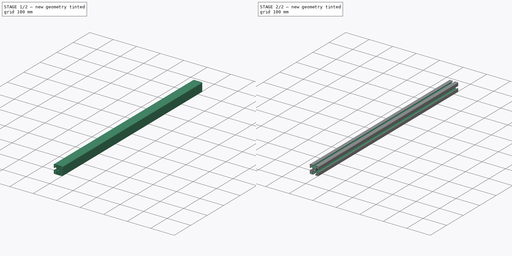
[diagram: build sequence overview — one tinted view per stage of 2, left to right]
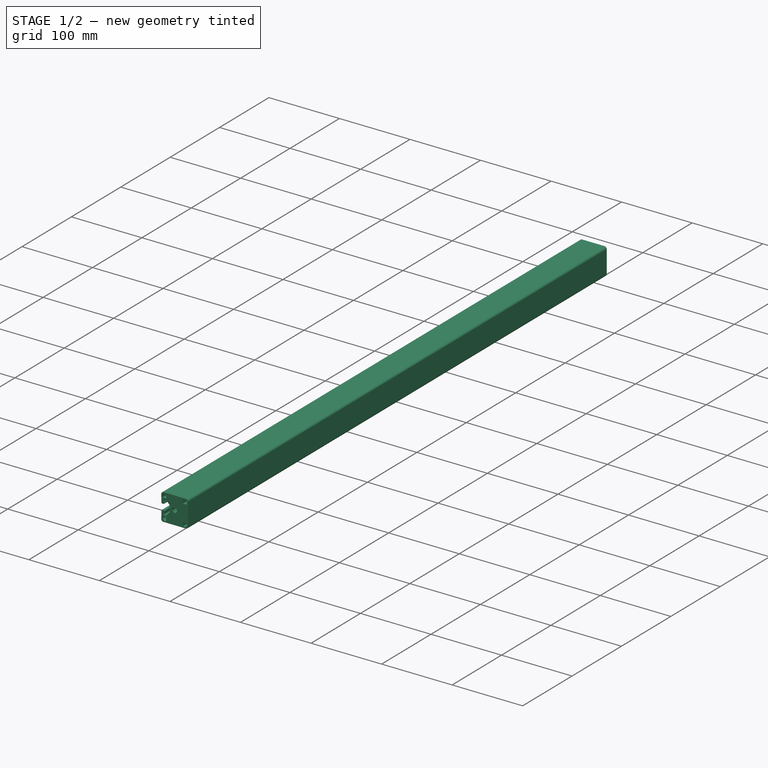
[diagram: stage 1 of 2 — iso view after this stage's code; geometry added in this stage tinted green]
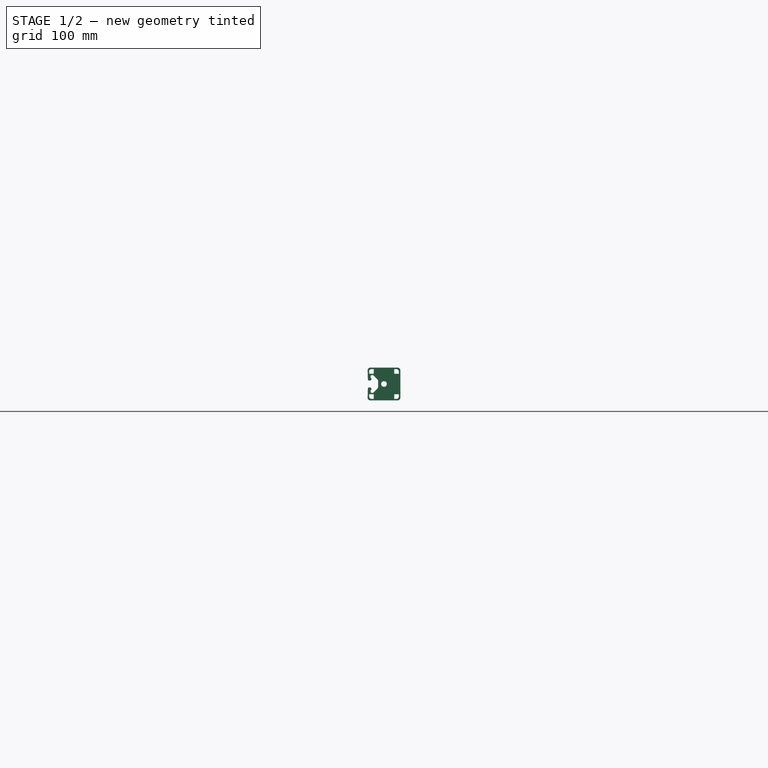
[diagram: stage 1 of 2 — front view after this stage's code; geometry added in this stage tinted green]
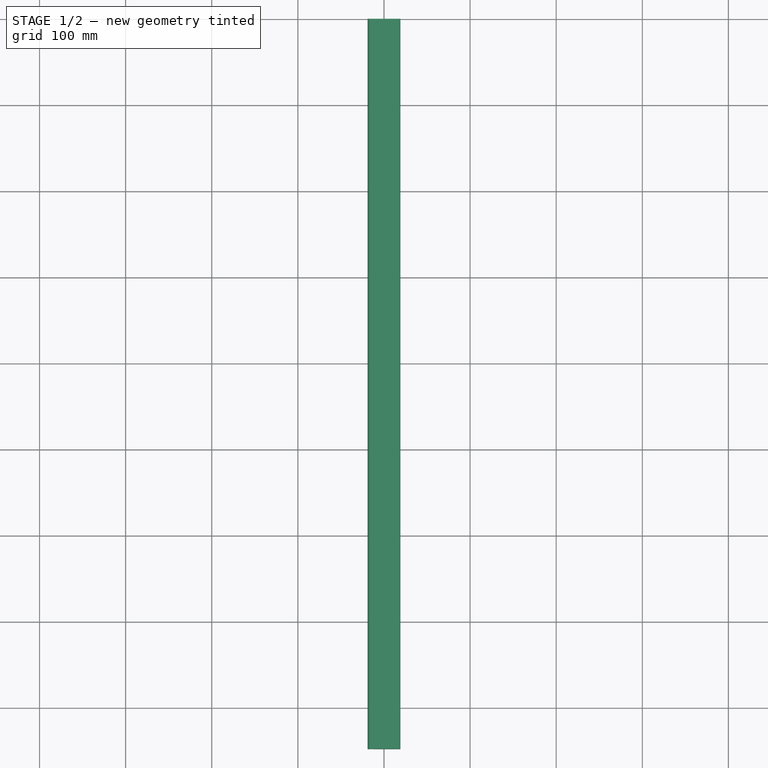
[diagram: stage 1 of 2 — top view after this stage's code; geometry added in this stage tinted green]
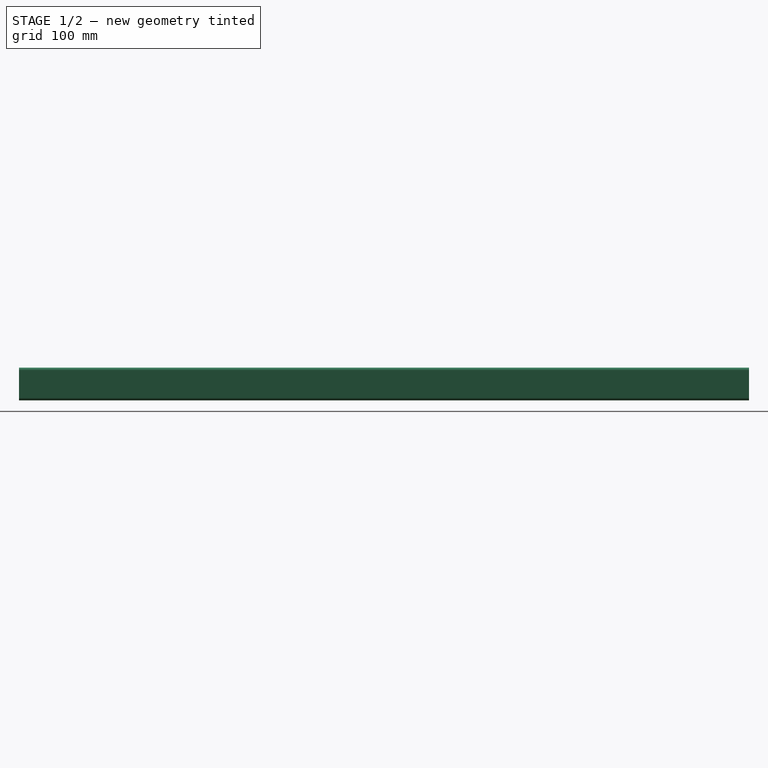
[diagram: stage 1 of 2 — right view after this stage's code; geometry added in this stage tinted green]
FCSTD DOCUMENT  (FreeCAD 0.21R33668 +7 (Git))
Label: 1515-33.375
License: All rights reserved
LicenseURL: http://en.wikipedia.org/wiki/All_rights_reserved
objects: Sketcher::SketchObject×2, PartDesign::CoordinateSystem×1, PartDesign::Pad×1, PartDesign::Pocket×1, PartDesign::PolarPattern×1, PartDesign::Body×1, App::Part×1
note: 9 computed .brp shape members not serialized (recipe doc carries the construction recipe); baked Part::Feature solids carry a one-line shape summary decoded from their .brp

FEATURE [PartDesign::CoordinateSystem] LCS_001
  AttacherType = Attacher::AttachEngine3D
  MapMode = 2
  Support = -> [X_Axis001]
FEATURE [Sketcher::SketchObject] Sketch
  FullyConstrained = true
  MapMode = 5
  Placement = pos=(0,0,0) rot=(1,0,0;1.5708rad)
  Support = -> [XZ_Plane001]
  sketch-geometry (43):
    g0: ArcOfCircle CenterX=-15.87 CenterY=15.87 CenterZ=0 NormalX=0 NormalY=0 NormalZ=1 AngleXU=0 Radius=3.18 StartAngle=1.5708 EndAngle=3.14159
    g1: LineSegment StartX=-15.87 StartY=19.05 StartZ=0 EndX=15.87 EndY=19.05 EndZ=0
    g2: ArcOfCircle CenterX=15.87 CenterY=15.87 CenterZ=0 NormalX=0 NormalY=0 NormalZ=1 AngleXU=0 Radius=3.18 StartAngle=1e-16 EndAngle=1.5708
    g3: LineSegment StartX=19.05 StartY=15.87 StartZ=0 EndX=19.05 EndY=-15.87 EndZ=0
    g4: ArcOfCircle CenterX=15.87 CenterY=-15.87 CenterZ=0 NormalX=0 NormalY=0 NormalZ=1 AngleXU=0 Radius=3.18 StartAngle=4.71239 EndAngle=6.28319
    g5: LineSegment StartX=15.87 StartY=-19.05 StartZ=0 EndX=-15.87 EndY=-19.05 EndZ=0
    g6: ArcOfCircle CenterX=-15.87 CenterY=-15.87 CenterZ=0 NormalX=0 NormalY=0 NormalZ=1 AngleXU=0 Radius=3.18 StartAngle=3.14159 EndAngle=4.71239
    g7: LineSegment StartX=-19.05 StartY=-15.87 StartZ=0 EndX=-19.05 EndY=15.87 EndZ=0
    g8: GeomPoint X=-19.05 Y=19.05 Z=0
    g9: GeomPoint X=19.05 Y=-19.05 Z=0
    g10: LineSegment StartX=-12.145 StartY=-11.895 StartZ=0 EndX=-17.025 EndY=-11.895 EndZ=0
    g11: LineSegment StartX=-17.275 StartY=-12.145 StartZ=0 EndX=-17.275 EndY=-14.485 EndZ=0
    g12: LineSegment StartX=-14.485 StartY=-17.275 StartZ=0 EndX=-12.145 EndY=-17.275 EndZ=0
    g13: LineSegment StartX=-11.895 StartY=-17.025 StartZ=0 EndX=-11.895 EndY=-12.145 EndZ=0
    g14: ArcOfCircle CenterX=-14.485 CenterY=-14.485 CenterZ=0 NormalX=0 NormalY=0 NormalZ=1 AngleXU=0 Radius=2.79 StartAngle=3.14159 EndAngle=4.71239
    g15: LineSegment StartX=-12.145 StartY=11.895 StartZ=0 EndX=-17.025 EndY=11.895 EndZ=0
    g16: LineSegment StartX=-17.275 StartY=12.145 StartZ=0 EndX=-17.275 EndY=14.485 EndZ=0
    g17: ArcOfCircle CenterX=-14.485 CenterY=14.485 CenterZ=0 NormalX=0 NormalY=0 NormalZ=1 AngleXU=0 Radius=2.79 StartAngle=1.5708 EndAngle=3.14159
    g18: LineSegment StartX=-14.485 StartY=17.275 StartZ=0 EndX=-12.145 EndY=17.275 EndZ=0
    g19: LineSegment StartX=-11.895 StartY=17.025 StartZ=0 EndX=-11.895 EndY=12.145 EndZ=0
    g20: LineSegment StartX=12.145 StartY=11.895 StartZ=0 EndX=17.025 EndY=11.895 EndZ=0
    g21: LineSegment StartX=17.275 StartY=12.145 StartZ=0 EndX=17.275 EndY=14.485 EndZ=0
    g22: ArcOfCircle CenterX=14.485 CenterY=14.485 CenterZ=0 NormalX=0 NormalY=0 NormalZ=1 AngleXU=0 Radius=2.79 StartAngle=1e-16 EndAngle=1.5708
    g23: LineSegment StartX=14.485 StartY=17.275 StartZ=0 EndX=12.145 EndY=17.275 EndZ=0
    g24: LineSegment StartX=11.895 StartY=17.025 StartZ=0 EndX=11.895 EndY=12.145 EndZ=0
    g25: LineSegment StartX=12.145 StartY=-11.895 StartZ=0 EndX=17.025 EndY=-11.895 EndZ=0
    g26: LineSegment StartX=17.275 StartY=-12.145 StartZ=0 EndX=17.275 EndY=-14.485 EndZ=0
    g27: LineSegment StartX=14.485 StartY=-17.275 StartZ=0 EndX=12.145 EndY=-17.275 EndZ=0
    g28: LineSegment StartX=11.895 StartY=-17.025 StartZ=0 EndX=11.895 EndY=-12.145 EndZ=0
    g29: ArcOfCircle CenterX=14.485 CenterY=-14.485 CenterZ=0 NormalX=0 NormalY=0 NormalZ=1 AngleXU=0 Radius=2.79 StartAngle=4.71239 EndAngle=6.28319
    g30: Circle CenterX=0 CenterY=0 CenterZ=0 NormalX=0 NormalY=0 NormalZ=1 AngleXU=0 Radius=3.265
    g31: ArcOfCircle CenterX=-17.025 CenterY=-12.145 CenterZ=0 NormalX=0 NormalY=0 NormalZ=1 AngleXU=0 Radius=0.25 StartAngle=1.5708 EndAngle=3.14159
    g32: ArcOfCircle CenterX=-12.145 CenterY=-12.145 CenterZ=0 NormalX=0 NormalY=0 NormalZ=1 AngleXU=0 Radius=0.25 StartAngle=3.4e-15 EndAngle=1.5708
    g33: ArcOfCircle CenterX=-12.145 CenterY=-17.025 CenterZ=0 NormalX=0 NormalY=0 NormalZ=1 AngleXU=0 Radius=0.25 StartAngle=4.71239 EndAngle=6.28319
    g34: ArcOfCircle CenterX=-12.145 CenterY=17.025 CenterZ=0 NormalX=0 NormalY=0 NormalZ=1 AngleXU=0 Radius=0.25 StartAngle=1.4e-15 EndAngle=1.5708
    g35: ArcOfCircle CenterX=-12.145 CenterY=12.145 CenterZ=0 NormalX=0 NormalY=0 NormalZ=1 AngleXU=0 Radius=0.25 StartAngle=4.71239 EndAngle=6.28319
    g36: ArcOfCircle CenterX=-17.025 CenterY=12.145 CenterZ=0 NormalX=0 NormalY=0 NormalZ=1 AngleXU=0 Radius=0.25 StartAngle=3.14159 EndAngle=4.71239
    g37: ArcOfCircle CenterX=12.145 CenterY=17.025 CenterZ=0 NormalX=0 NormalY=0 NormalZ=1 AngleXU=0 Radius=0.25 StartAngle=1.5708 EndAngle=3.14159
    g38: ArcOfCircle CenterX=12.145 CenterY=12.145 CenterZ=0 NormalX=0 NormalY=0 NormalZ=1 AngleXU=0 Radius=0.25 StartAngle=3.14159 EndAngle=4.71239
    g39: ArcOfCircle CenterX=17.025 CenterY=12.145 CenterZ=0 NormalX=0 NormalY=0 NormalZ=1 AngleXU=0 Radius=0.25 StartAngle=4.71239 EndAngle=6.28319
    g40: ArcOfCircle CenterX=17.025 CenterY=-12.145 CenterZ=0 NormalX=0 NormalY=0 NormalZ=1 AngleXU=0 Radius=0.25 StartAngle=2.8e-15 EndAngle=1.5708
    g41: ArcOfCircle CenterX=12.145 CenterY=-12.145 CenterZ=0 NormalX=0 NormalY=0 NormalZ=1 AngleXU=0 Radius=0.25 StartAngle=1.5708 EndAngle=3.14159
    g42: ArcOfCircle CenterX=12.145 CenterY=-17.025 CenterZ=0 NormalX=0 NormalY=0 NormalZ=1 AngleXU=0 Radius=0.25 StartAngle=3.14159 EndAngle=4.71239
  constraints (101):
    c: Tangent(g0,g1) = 1.5708
    c: Tangent(g1,g2) = 1.5708
    c: Tangent(g2,g3) = 1.5708
    c: Tangent(g3,g4) = 1.5708
    c: Tangent(g4,g5) = 1.5708
    c: Tangent(g5,g6) = 1.5708
    c: Tangent(g6,g7) = 1.5708
    c: Tangent(g7,g0) = 1.5708
    c: Horizontal(g1)
    c: Horizontal(g5)
    c: Vertical(g3)
    c: Vertical(g7)
    c: Equal(g0,g2)
    c: Equal(g2,g4)
    c: Equal(g4,g6)
    c: PointOnObject(g8,g1)
    c: PointOnObject(g8,g7)
    c: PointOnObject(g9,g3)
    c: PointOnObject(g9,g5)
    c: Symmetric(g0,g4,g-1)
    c: Equal(g1,g3)
    c: DistanceX(g0,g2) = 38.1
    c: Horizontal(g10)
    c: Horizontal(g12)
    c: Vertical(g11)
    c: Vertical(g13)
    c: Tangent(g12,g14) = -1.5708
    c: Tangent(g11,g14) = -1.5708
    c: Horizontal(g15)
    c: Horizontal(g18)
    c: Vertical(g16)
    c: Vertical(g19)
    c: Tangent(g18,g17) = 1.5708
    c: Tangent(g16,g17) = 1.5708
    c: Horizontal(g25)
    c: Horizontal(g27)
    c: Vertical(g26)
    c: Vertical(g28)
    c: Tangent(g27,g29) = 1.5708
    c: Tangent(g26,g29) = 1.5708
    c: Horizontal(g20)
    c: Horizontal(g23)
    c: Vertical(g21)
    c: Tangent(g23,g22) = -1.5708
    c: Tangent(g21,g22) = -1.5708
    c: Coincident(g30,g-1)
    c: Diameter(g30) = 6.53
    c: Equal(g17,g22)
    c: Equal(g22,g29)
    c: Equal(g29,g14)
    c: Equal(g19,g15)
    c: Equal(g15,g24)
    c: Equal(g24,g20)
    c: Equal(g20,g25)
    c: Equal(g25,g28)
    c: Equal(g28,g13)
    c: Equal(g13,g10)
    c: Radius(g2) = 3.18
    c: Radius(g14) = 2.79
    c: Tangent(g11,g31) = -1.5708
    c: Tangent(g10,g31) = -1.5708
    c: Tangent(g13,g32) = -1.5708
    c: Tangent(g10,g32) = -1.5708
    c: Tangent(g13,g33) = -1.5708
    c: Tangent(g12,g33) = -1.5708
    c: Tangent(g18,g34) = 1.5708
    c: Tangent(g19,g34) = 1.5708
    c: Tangent(g19,g35) = 1.5708
    c: Tangent(g15,g35) = 1.5708
    c: Tangent(g15,g36) = 1.5708
    c: Tangent(g16,g36) = 1.5708
    c: Tangent(g23,g37) = -1.5708
    c: Tangent(g24,g37) = -1.5708
    c: Tangent(g20,g38) = -1.5708
    c: Tangent(g24,g38) = -1.5708
    c: Tangent(g21,g39) = -1.5708
    c: Tangent(g20,g39) = -1.5708
    c: Tangent(g26,g40) = 1.5708
    c: Tangent(g25,g40) = 1.5708
    c: Tangent(g28,g41) = 1.5708
    c: Tangent(g25,g41) = 1.5708
    c: Tangent(g27,g42) = 1.5708
    c: Tangent(g28,g42) = 1.5708
    c: Equal(g41,g40)
    c: Equal(g40,g42)
    c: Equal(g42,g32)
    c: Equal(g32,g33)
    c: Equal(g33,g31)
    c: Equal(g31,g34)
    c: Equal(g34,g35)
    c: Equal(g35,g36)
    c: Equal(g38,g39)
    c: Equal(g39,g37)
    c: Radius(g39) = 0.25
    c: DistanceX(g13,g28) = 23.79
    c: Symmetric(g13,g28,g-2)
    c: Symmetric(g10,g15,g-1)
    c: Symmetric(g19,g24,g-2)
    c: Symmetric(g20,g25,g-1)
    c: DistanceX(g11,g13) = 5.38
    c: DistanceY(g10,g15) = 23.79
FEATURE [PartDesign::Pad] Pad
  Direction = (0,-1,-2e-16)
  Length = 847.725
  Length2 = 10
  Placement = pos=(0,0,0) rot=(1,0,0;1.5708rad)
  Profile = -> Sketch
  ReferenceAxis = -> Sketch [N_Axis]
  Refine = true
  Type = 0
FEATURE [Sketcher::SketchObject] Sketch001  label="SlotSketch"
  FullyConstrained = true
  MapMode = 5
  Placement = pos=(0,0,0) rot=(1,0,0;1.5708rad)
  Support = -> [XZ_Plane001]
  sketch-geometry (34):
    g0: LineSegment StartX=-17.4444 StartY=4.065 StartZ=0 EndX=-15.9241 EndY=4.065 EndZ=0
    g1: LineSegment StartX=-14.6541 StartY=5.335 StartZ=0 EndX=-14.6541 EndY=6.61 EndZ=0
    g2: LineSegment StartX=-14.9041 StartY=6.86 StartZ=0 EndX=-15.2541 EndY=6.86 EndZ=0
    g3: LineSegment StartX=-15.5041 StartY=7.10389 StartZ=0 EndX=-15.55 EndY=8.98397 EndZ=0
    g4: LineSegment StartX=-14.2804 StartY=10.285 StartZ=0 EndX=-12.5452 EndY=10.285 EndZ=0
    g5: LineSegment StartX=-12.3685 StartY=10.2118 StartZ=0 EndX=-7.91157 EndY=5.7549 EndZ=0
    g6: ArcOfCircle CenterX=-15.9241 CenterY=5.335 CenterZ=0 NormalX=0 NormalY=0 NormalZ=1 AngleXU=0 Radius=1.27 StartAngle=4.71239 EndAngle=6.28319
    g7: ArcOfCircle CenterX=-14.9041 CenterY=6.61 CenterZ=0 NormalX=0 NormalY=0 NormalZ=1 AngleXU=0 Radius=0.25 StartAngle=6e-16 EndAngle=1.5708
    g8: ArcOfCircle CenterX=-15.2541 CenterY=7.11 CenterZ=0 NormalX=0 NormalY=0 NormalZ=1 AngleXU=0 Radius=0.25 StartAngle=3.16603 EndAngle=4.71239
    g9: ArcOfCircle CenterX=-14.2804 CenterY=9.015 CenterZ=0 NormalX=0 NormalY=0 NormalZ=1 AngleXU=0 Radius=1.27 StartAngle=1.5708 EndAngle=3.16603
    g10: ArcOfCircle CenterX=-12.5452 CenterY=10.035 CenterZ=0 NormalX=0 NormalY=0 NormalZ=1 AngleXU=0 Radius=0.25 StartAngle=0.785398 EndAngle=1.5708
    g11: LineSegment StartX=-14.6541 StartY=-5.335 StartZ=0 EndX=-14.6541 EndY=-6.61 EndZ=0
    g12: LineSegment StartX=-14.9041 StartY=-6.86 StartZ=0 EndX=-15.2541 EndY=-6.86 EndZ=0
    g13: LineSegment StartX=-15.5041 StartY=-7.10389 StartZ=0 EndX=-15.55 EndY=-8.98397 EndZ=0
    g14: LineSegment StartX=-14.2804 StartY=-10.285 StartZ=0 EndX=-12.5452 EndY=-10.285 EndZ=0
    g15: LineSegment StartX=-12.3685 StartY=-10.2118 StartZ=0 EndX=-7.91157 EndY=-5.7549 EndZ=0
    g16: ArcOfCircle CenterX=-15.9241 CenterY=-5.335 CenterZ=0 NormalX=0 NormalY=0 NormalZ=1 AngleXU=0 Radius=1.27 StartAngle=-9e-16 EndAngle=1.5708
    g17: ArcOfCircle CenterX=-14.9041 CenterY=-6.61 CenterZ=0 NormalX=0 NormalY=0 NormalZ=1 AngleXU=0 Radius=0.25 StartAngle=4.71239 EndAngle=6.28319
    g18: ArcOfCircle CenterX=-15.2541 CenterY=-7.11 CenterZ=0 NormalX=0 NormalY=0 NormalZ=1 AngleXU=0 Radius=0.25 StartAngle=1.5708 EndAngle=3.11716
    g19: ArcOfCircle CenterX=-14.2804 CenterY=-9.015 CenterZ=0 NormalX=0 NormalY=0 NormalZ=1 AngleXU=0 Radius=1.27 StartAngle=3.11716 EndAngle=4.71239
    g20: ArcOfCircle CenterX=-12.5452 CenterY=-10.035 CenterZ=0 NormalX=0 NormalY=0 NormalZ=1 AngleXU=0 Radius=0.25 StartAngle=4.71239 EndAngle=5.49779
    g21: LineSegment StartX=-6.74 StartY=-2.92647 StartZ=0 EndX=-6.74 EndY=2.92647 EndZ=0
    g22: ArcOfCircle CenterX=-10.74 CenterY=2.92647 CenterZ=0 NormalX=0 NormalY=0 NormalZ=1 AngleXU=0 Radius=4 StartAngle=0 EndAngle=0.785398
    g23: ArcOfCircle CenterX=-10.74 CenterY=-2.92647 CenterZ=0 NormalX=0 NormalY=0 NormalZ=1 AngleXU=0 Radius=4 StartAngle=5.49779 EndAngle=6.28319
    g24: LineSegment StartX=0 StartY=0 StartZ=0 EndX=-14.2804 EndY=14.2804 EndZ=0
    g25: LineSegment StartX=-7.14019 StartY=7.14019 StartZ=0 EndX=-8.21853 EndY=6.06185 EndZ=0
    g26: LineSegment StartX=-18.7141 StartY=5.30397 StartZ=0 EndX=-19.05 EndY=19.05 EndZ=0
    g27: ArcOfCircle CenterX=-17.4444 CenterY=5.335 CenterZ=0 NormalX=0 NormalY=0 NormalZ=1 AngleXU=0 Radius=1.27 StartAngle=3.16603 EndAngle=4.71239
    g28: LineSegment StartX=-18.7141 StartY=-5.30397 StartZ=0 EndX=-19.05 EndY=-19.05 EndZ=0
    g29: ArcOfCircle CenterX=-17.4444 CenterY=-5.335 CenterZ=0 NormalX=0 NormalY=0 NormalZ=1 AngleXU=0 Radius=1.27 StartAngle=1.5708 EndAngle=3.11716
    g30: LineSegment StartX=-17.4444 StartY=-4.065 StartZ=0 EndX=-15.9241 EndY=-4.065 EndZ=0
    g31: LineSegment StartX=-19.05 StartY=19.05 StartZ=0 EndX=-24.05 EndY=19.05 EndZ=0
    g32: LineSegment StartX=-24.05 StartY=19.05 StartZ=0 EndX=-24.05 EndY=-19.05 EndZ=0
    g33: LineSegment StartX=-24.05 StartY=-19.05 StartZ=0 EndX=-19.05 EndY=-19.05 EndZ=0
  constraints (78):
    c: Horizontal(g0)
    c: Tangent(g1,g6) = -1.5708
    c: Tangent(g0,g6) = -1.5708
    c: Tangent(g2,g7) = -1.5708
    c: Tangent(g1,g7) = -1.5708
    c: Tangent(g3,g8) = 1.5708
    c: Tangent(g2,g8) = 1.5708
    c: Tangent(g3,g9) = 1.5708
    c: Tangent(g4,g9) = 1.5708
    c: Tangent(g4,g10) = 1.5708
    c: Tangent(g5,g10) = 1.5708
    c: Horizontal(g4)
    c: Vertical(g1)
    c: Tangent(g11,g16) = 1.5708
    c: Tangent(g12,g17) = 1.5708
    c: Tangent(g11,g17) = 1.5708
    c: Tangent(g13,g18) = -1.5708
    c: Tangent(g12,g18) = -1.5708
    c: Tangent(g13,g19) = -1.5708
    c: Tangent(g14,g19) = -1.5708
    c: Tangent(g14,g20) = -1.5708
    c: Tangent(g15,g20) = -1.5708
    c: Tangent(g5,g22) = 1.5708
    c: Tangent(g21,g22) = -1.5708
    c: Tangent(g15,g23) = -1.5708
    c: Tangent(g21,g23) = -1.5708
    c: Angle(g-1,g5) = 2.35619
    c: Symmetric(g21,g21,g-1)
    c: Symmetric(g5,g15,g-1)
    c: Symmetric(g4,g14,g-1)
    c: Symmetric(g14,g4,g-1)
    c: Symmetric(g3,g13,g-1)
    c: Symmetric(g1,g11,g-1)
    c: Symmetric(g1,g11,g-1)
    c: Symmetric(g2,g12,g-1)
    c: Radius(g9) = 1.27
    c: Coincident(g24,g-1)
    c: Parallel(g5,g24)
    c: Vertical(g4,g24)
    c: PointOnObject(g25,g5)
    c: Perpendicular(g24,g25)
    c: Symmetric(g24,g24,g25)
    c: Distance(g25) = 1.525
    c: DistanceY(g14,g4) = 20.57
    c: DistanceY(g12,g2) = 13.72
    c: Radius(g6) = 1.27
    c: Radius(g7) = 0.25
    c: Radius(g8) = 0.25
    c: DistanceX(g21,g24) = 6.74
    c: Horizontal(g2)
    c: Radius(g18) = 0.25
    c: Radius(g23) = 4
    c: Radius(g20) = 0.25
    c: Tangent(g0,g27) = -1.5708
    c: Tangent(g26,g27) = 1.5708
    c: Equal(g6,g27)
    c: Angle(g-2,g26) = 0.0244346
    c: Tangent(g30,g29) = 1.5708
    c: Tangent(g28,g29) = -1.5708
    c: Coincident(g30,g16)
    c: Equal(g29,g27)
    c: Symmetric(g0,g16,g-1)
    c: Symmetric(g29,g0,g-1)
    c: Angle(g-2,g28) = -0.0244346
    c: Coincident(g31,g26)
    c: Horizontal(g31)
    c: Coincident(g32,g31)
    c: Coincident(g33,g32)
    c: Coincident(g33,g28)
    c: Horizontal(g33)
    c: DistanceY(g29,g0) = 8.13
    c: DistanceX(g28,g13) = 3.21
    c: DistanceY(g32,g32) = 38.1
    c: Symmetric(g31,g32,g-1)
    c: DistanceX(g26,g-1) = 19.05
    c: DistanceX(g33,g33) = 5
    c: DistanceX(g28,g11) = 4.06
    c: Parallel(g3,g26)
FEATURE [PartDesign::Pocket] Pocket
  BaseFeature = -> Pad
  Direction = (0,1,2e-16)
  Length = 5
  Length2 = 5
  Placement = pos=(0,0,0) rot=(1,0,0;1.5708rad)
  Profile = -> Sketch001
  ReferenceAxis = -> Sketch001 [N_Axis]
  Refine = true
  Reversed = true
  Type = 1
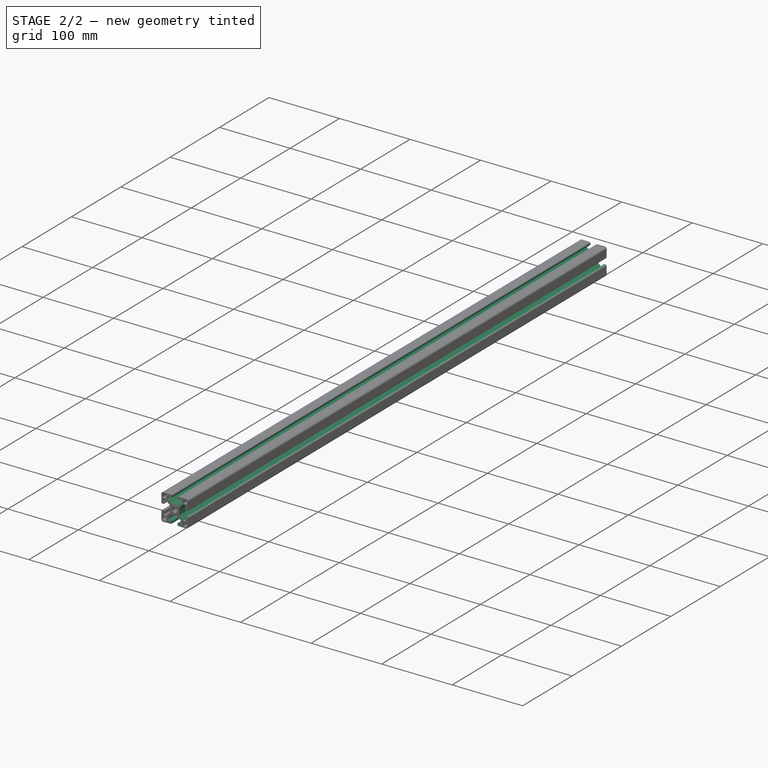
[diagram: stage 2 of 2 — iso view after this stage's code; geometry added in this stage tinted green]
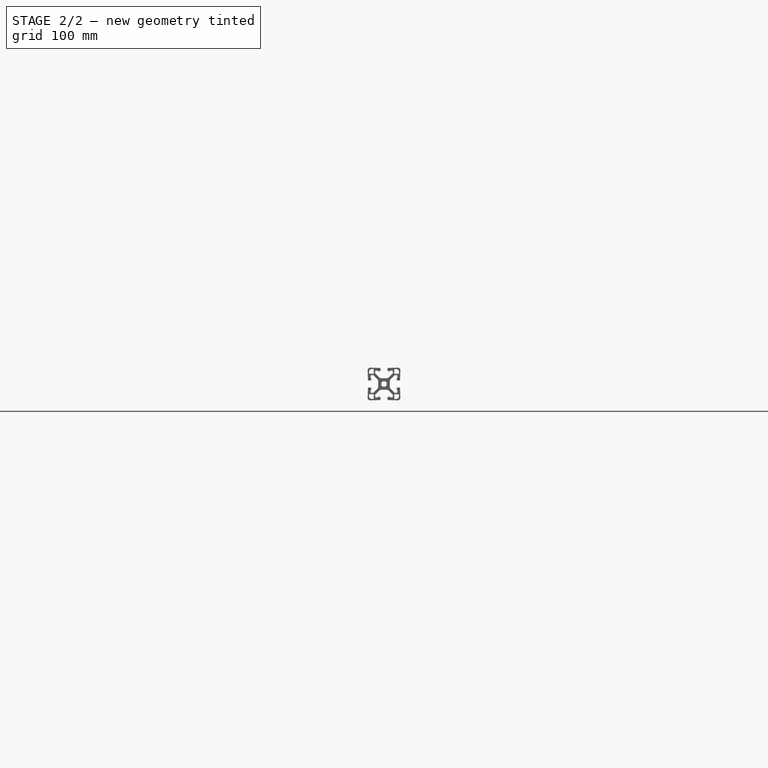
[diagram: stage 2 of 2 — front view after this stage's code; geometry added in this stage tinted green]
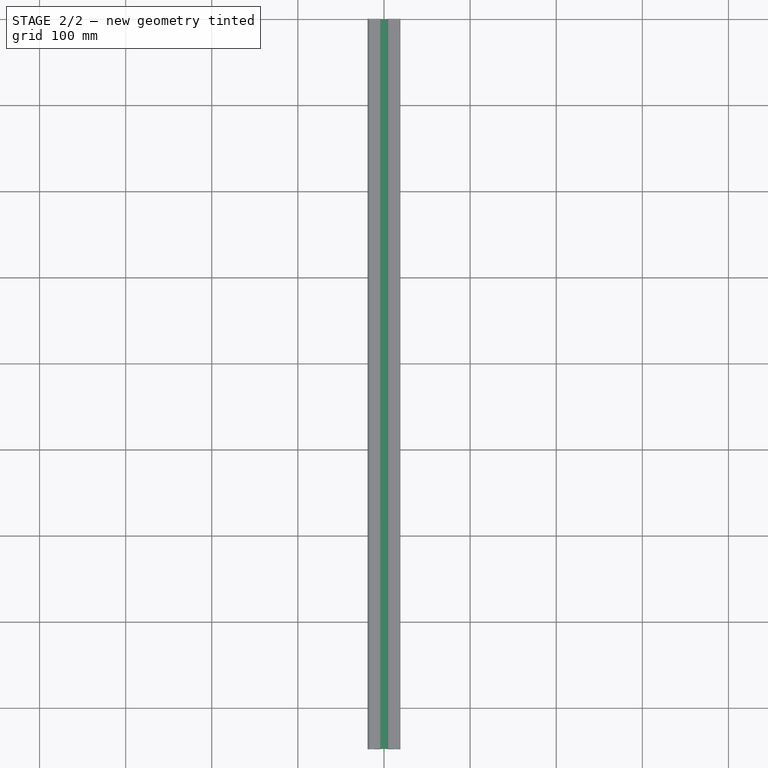
[diagram: stage 2 of 2 — top view after this stage's code; geometry added in this stage tinted green]
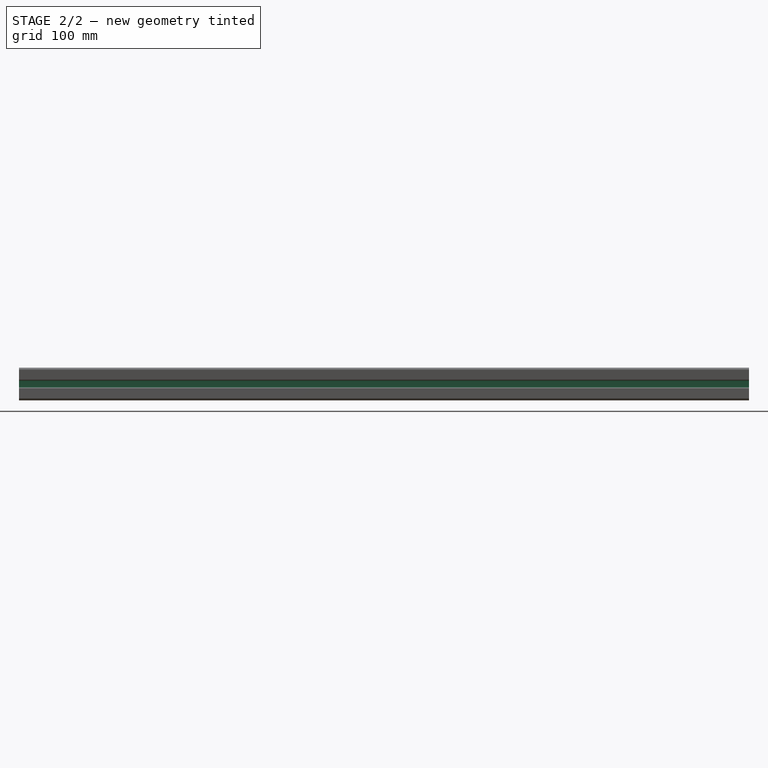
[diagram: stage 2 of 2 — right view after this stage's code; geometry added in this stage tinted green]
FEATURE [PartDesign::PolarPattern] PolarPattern
  Angle = 360
  Axis = -> Sketch001 [N_Axis]
  BaseFeature = -> Pocket
  Occurrences = 4
  Originals = -> [Pocket]
  Placement = pos=(0,0,0) rot=(1,0,0;1.5708rad)
  Refine = true
FEATURE [PartDesign::Body] _515  label="1515"
  Group = -> [LCS_001,Sketch,Pad,Sketch001,Pocket,PolarPattern]
  Origin = -> Origin001
  Tip = -> PolarPattern
FEATURE [App::Part] _515_33_375  label="1515 33.375"
  Group = -> [_515]
  Origin = -> Origin
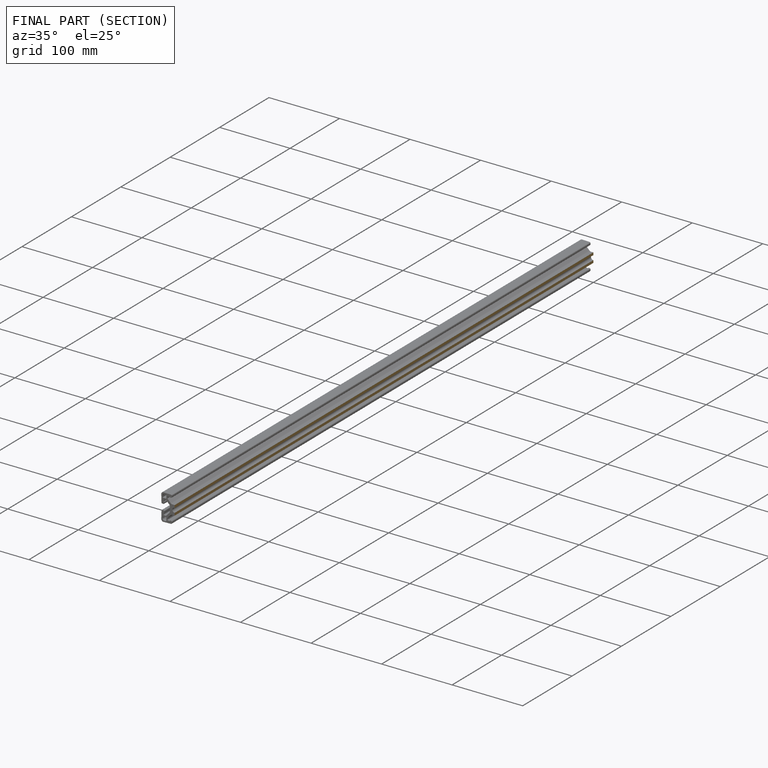
[diagram: finished part — half-section view (interior)]
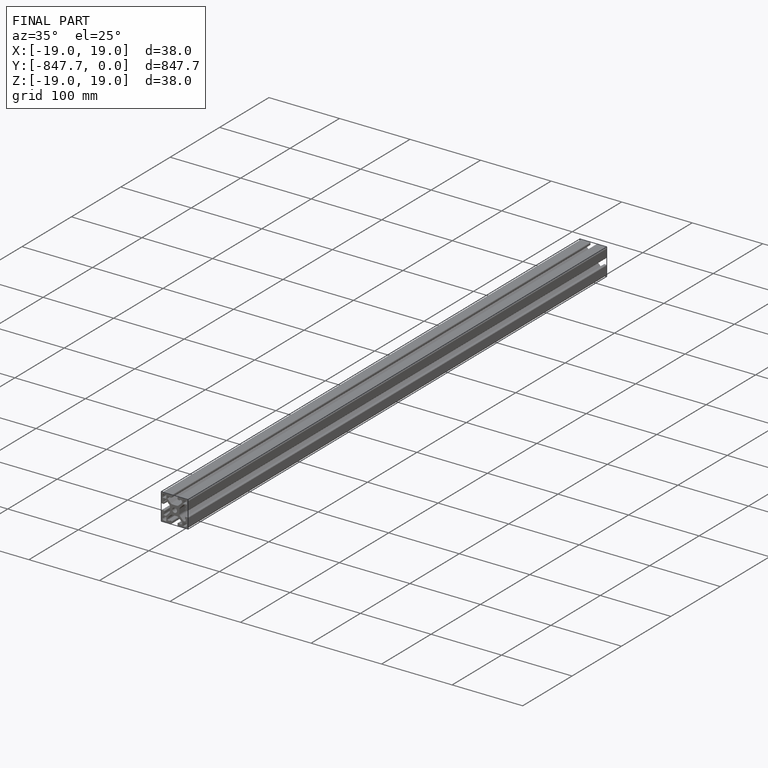
[diagram: finished part — iso view with bounding-box wireframe]
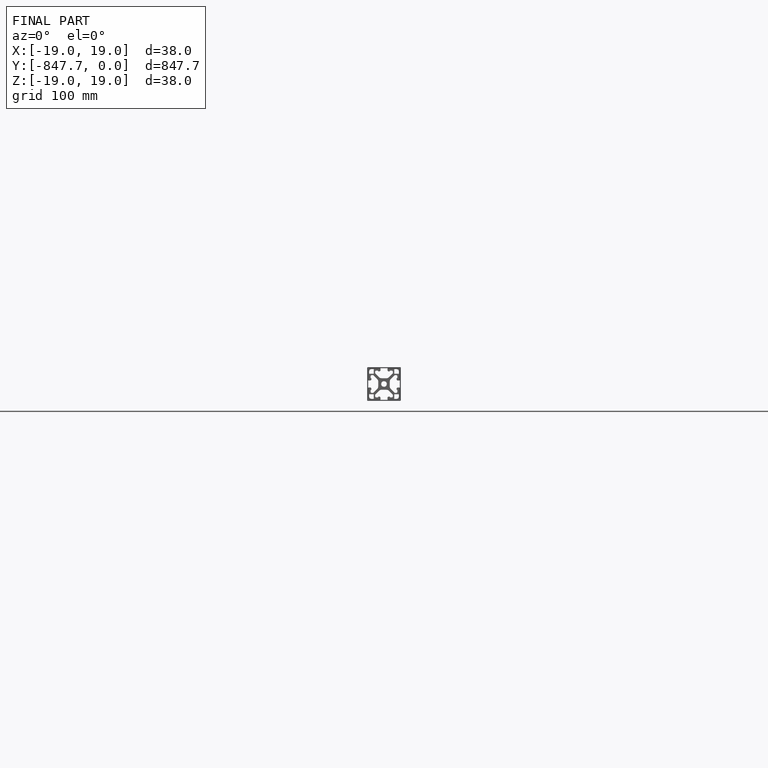
[diagram: finished part — front view with bounding-box wireframe]
